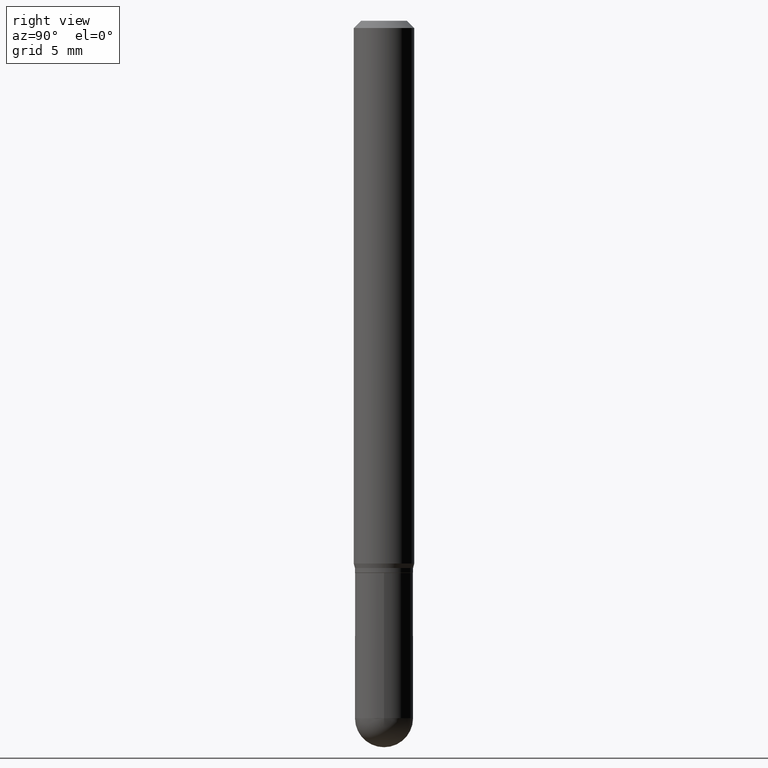
[diagram: clean part render]
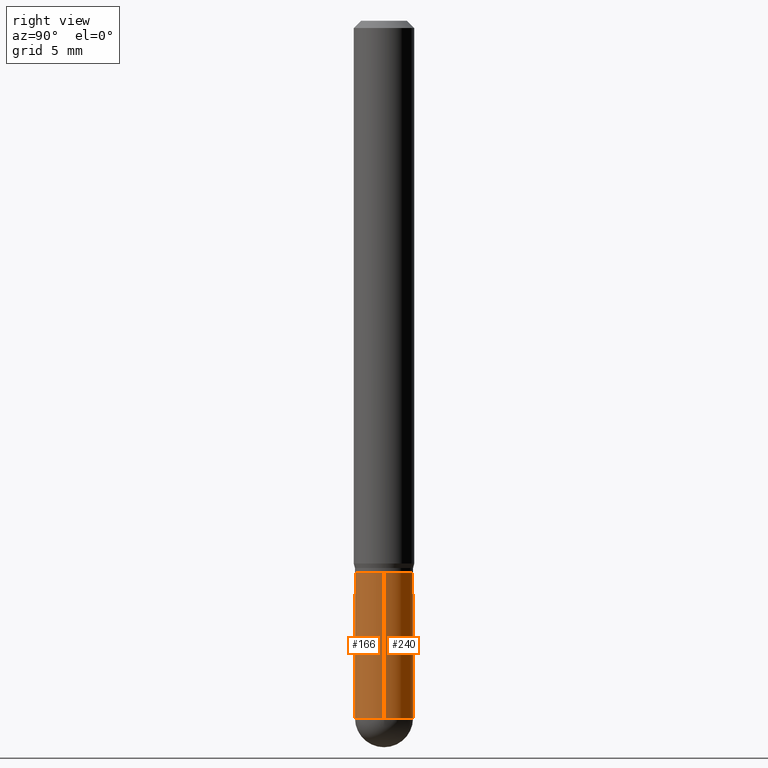
[diagram: same view with one multi-face feature highlighted, each face labeled with its STEP entity id]
A machine part, right view. The highlighted faces form ONE feature: a constant-radius fillet chain: 2 tangent blend faces with common blend radius 1.524 mm. The faces share edges in the B-rep.
Their STEP definitions:
[1] entity #166 (Cylinder):
#24 = DIRECTION ( 'NONE',  ( 1.000000000000000000, -6.982962677686268288E-15, 0.000000000000000000 ) ) ;
#32 = VERTEX_POINT ( 'NONE', #335 ) ;
#37 = AXIS2_PLACEMENT_3D ( 'NONE', #469, #142, #268 ) ;
#38 = ORIENTED_EDGE ( 'NONE', *, *, #120, .F. ) ;
#39 = CARTESIAN_POINT ( 'NONE',  ( 0.05999999999999999778, -4.399266486942362543E-15, -1.140000000000000124 ) ) ;
#46 = EDGE_CURVE ( 'NONE', #164, #32, #371, .T. ) ;
#61 = CARTESIAN_POINT ( 'NONE',  ( 0.06000000000000001166, -4.922988687768835701E-15, -1.440000000000000169 ) ) ;
#68 = DIRECTION ( 'NONE',  ( 1.000000000000000000, -6.982962677686266711E-15, 0.000000000000000000 ) ) ;
#75 = CIRCLE ( 'NONE', #475, 0.06000000000000001166 ) ;
#82 = VERTEX_POINT ( 'NONE', #61 ) ;
#96 = DIRECTION ( 'NONE',  ( -2.445468806185136877E-29, 3.491481338843145188E-15, 1.000000000000000000 ) ) ;
#117 = CARTESIAN_POINT ( 'NONE',  ( -4.263256414560247449E-16, -0.06000000000000501460, -1.439999999999999947 ) ) ;
#120 = EDGE_CURVE ( 'NONE', #32, #247, #156, .T. ) ;
#122 = CARTESIAN_POINT ( 'NONE',  ( 3.521475080906597305E-29, -5.027733127934130649E-15, -1.440000000000000169 ) ) ;
#130 = CARTESIAN_POINT ( 'NONE',  ( 0.06000000000000001166, -4.189777606611760914E-16, 2.925706065477562106E-30 ) ) ;
#135 = CYLINDRICAL_SURFACE ( 'NONE', #37, 0.06000000000000001166 ) ;
#142 = DIRECTION ( 'NONE',  ( -2.445468806185136597E-29, 3.491481338843145583E-15, 1.000000000000000000 ) ) ;
#148 = AXIS2_PLACEMENT_3D ( 'NONE', #481, #357, #198 ) ;
#150 = CARTESIAN_POINT ( 'NONE',  ( 2.787834439051055989E-29, -3.980288726281186698E-15, -1.140000000000000124 ) ) ;
#156 = CIRCLE ( 'NONE', #296, 0.05999999999999999778 ) ;
#164 = VERTEX_POINT ( 'NONE', #263 ) ;
#166 = ADVANCED_FACE ( 'NONE', ( #503 ), #135, .T. ) ;
#171 = DIRECTION ( 'NONE',  ( -2.445468806185136877E-29, 3.491481338843145188E-15, 1.000000000000000000 ) ) ;
#175 = LINE ( 'NONE', #130, #341 ) ;
#198 = DIRECTION ( 'NONE',  ( 1.000000000000000000, -6.982962677686266711E-15, 0.000000000000000000 ) ) ;
#203 = ORIENTED_EDGE ( 'NONE', *, *, #258, .T. ) ;
#223 = VECTOR ( 'NONE', #171, 39.37007874015748143 ) ;
#232 = EDGE_LOOP ( 'NONE', ( #368, #203, #479, #374, #38 ) ) ;
#247 = VERTEX_POINT ( 'NONE', #39 ) ;
#258 = EDGE_CURVE ( 'NONE', #164, #320, #75, .T. ) ;
#263 = CARTESIAN_POINT ( 'NONE',  ( -0.06000000000000001166, -4.077685285651599366E-15, -1.440000000000000169 ) ) ;
#268 = DIRECTION ( 'NONE',  ( 1.000000000000000000, -6.982962677686266711E-15, 4.876176775795935793E-29 ) ) ;
#296 = AXIS2_PLACEMENT_3D ( 'NONE', #150, #309, #24 ) ;
#309 = DIRECTION ( 'NONE',  ( -2.445468806185136597E-29, 3.491481338843145583E-15, 1.000000000000000000 ) ) ;
#311 = DIRECTION ( 'NONE',  ( -2.445468806185136597E-29, 3.491481338843145583E-15, 1.000000000000000000 ) ) ;
#320 = VERTEX_POINT ( 'NONE', #117 ) ;
#335 = CARTESIAN_POINT ( 'NONE',  ( -0.05999999999999999778, -4.077685285651597789E-15, -1.140000000000000124 ) ) ;
#341 = VECTOR ( 'NONE', #96, 39.37007874015748143 ) ;
#357 = DIRECTION ( 'NONE',  ( -2.445468806185136597E-29, 3.491481338843145583E-15, 1.000000000000000000 ) ) ;
#368 = ORIENTED_EDGE ( 'NONE', *, *, #46, .F. ) ;
#369 = CARTESIAN_POINT ( 'NONE',  ( -0.06000000000000001166, 4.263256414560601944E-16, -2.951361054152943763E-30 ) ) ;
#371 = LINE ( 'NONE', #369, #223 ) ;
#374 = ORIENTED_EDGE ( 'NONE', *, *, #451, .T. ) ;
#375 = EDGE_CURVE ( 'NONE', #320, #82, #497, .T. ) ;
#451 = EDGE_CURVE ( 'NONE', #82, #247, #175, .T. ) ;
#469 = CARTESIAN_POINT ( 'NONE',  ( 0.000000000000000000, 0.000000000000000000, 0.000000000000000000 ) ) ;
#475 = AXIS2_PLACEMENT_3D ( 'NONE', #122, #311, #68 ) ;
#479 = ORIENTED_EDGE ( 'NONE', *, *, #375, .T. ) ;
#481 = CARTESIAN_POINT ( 'NONE',  ( 3.521475080906597305E-29, -5.027733127934130649E-15, -1.440000000000000169 ) ) ;
#497 = CIRCLE ( 'NONE', #148, 0.06000000000000001166 ) ;
#503 = FACE_OUTER_BOUND ( 'NONE', #232, .T. ) ;
[2] entity #240 (Cylinder):
#9 = EDGE_CURVE ( 'NONE', #66, #164, #314, .T. ) ;
#20 = DIRECTION ( 'NONE',  ( 1.000000000000000000, -6.982962677686266711E-15, 0.000000000000000000 ) ) ;
#26 = FACE_OUTER_BOUND ( 'NONE', #409, .T. ) ;
#30 = DIRECTION ( 'NONE',  ( -2.445468806185136597E-29, 3.491481338843145583E-15, 1.000000000000000000 ) ) ;
#32 = VERTEX_POINT ( 'NONE', #335 ) ;
#39 = CARTESIAN_POINT ( 'NONE',  ( 0.05999999999999999778, -4.399266486942362543E-15, -1.140000000000000124 ) ) ;
#46 = EDGE_CURVE ( 'NONE', #164, #32, #371, .T. ) ;
#61 = CARTESIAN_POINT ( 'NONE',  ( 0.06000000000000001166, -4.922988687768835701E-15, -1.440000000000000169 ) ) ;
#66 = VERTEX_POINT ( 'NONE', #172 ) ;
#82 = VERTEX_POINT ( 'NONE', #61 ) ;
#84 = ORIENTED_EDGE ( 'NONE', *, *, #210, .T. ) ;
#88 = DIRECTION ( 'NONE',  ( 1.000000000000000000, -6.982962677686266711E-15, 0.000000000000000000 ) ) ;
#90 = EDGE_CURVE ( 'NONE', #247, #32, #214, .T. ) ;
#92 = CARTESIAN_POINT ( 'NONE',  ( 3.521475080906597305E-29, -5.027733127934130649E-15, -1.440000000000000169 ) ) ;
#96 = DIRECTION ( 'NONE',  ( -2.445468806185136877E-29, 3.491481338843145188E-15, 1.000000000000000000 ) ) ;
#121 = ORIENTED_EDGE ( 'NONE', *, *, #46, .T. ) ;
#130 = CARTESIAN_POINT ( 'NONE',  ( 0.06000000000000001166, -4.189777606611760914E-16, 2.925706065477562106E-30 ) ) ;
#161 = ORIENTED_EDGE ( 'NONE', *, *, #9, .T. ) ;
#164 = VERTEX_POINT ( 'NONE', #263 ) ;
#171 = DIRECTION ( 'NONE',  ( -2.445468806185136877E-29, 3.491481338843145188E-15, 1.000000000000000000 ) ) ;
#172 = CARTESIAN_POINT ( 'NONE',  ( 4.189777606612110478E-16, 0.05999999999999495320, -1.440000000000000391 ) ) ;
#175 = LINE ( 'NONE', #130, #341 ) ;
#183 = DIRECTION ( 'NONE',  ( 1.000000000000000000, -6.982962677686268288E-15, 0.000000000000000000 ) ) ;
#186 = CYLINDRICAL_SURFACE ( 'NONE', #360, 0.06000000000000001166 ) ;
#210 = EDGE_CURVE ( 'NONE', #82, #66, #420, .T. ) ;
#214 = CIRCLE ( 'NONE', #429, 0.05999999999999999778 ) ;
#217 = CARTESIAN_POINT ( 'NONE',  ( 3.521475080906597305E-29, -5.027733127934130649E-15, -1.440000000000000169 ) ) ;
#220 = CARTESIAN_POINT ( 'NONE',  ( 2.787834439051055989E-29, -3.980288726281186698E-15, -1.140000000000000124 ) ) ;
#223 = VECTOR ( 'NONE', #171, 39.37007874015748143 ) ;
#240 = ADVANCED_FACE ( 'NONE', ( #26 ), #186, .T. ) ;
#241 = AXIS2_PLACEMENT_3D ( 'NONE', #217, #487, #88 ) ;
#247 = VERTEX_POINT ( 'NONE', #39 ) ;
#255 = DIRECTION ( 'NONE',  ( -2.445468806185136597E-29, 3.491481338843145583E-15, 1.000000000000000000 ) ) ;
#261 = AXIS2_PLACEMENT_3D ( 'NONE', #92, #255, #20 ) ;
#263 = CARTESIAN_POINT ( 'NONE',  ( -0.06000000000000001166, -4.077685285651599366E-15, -1.440000000000000169 ) ) ;
#284 = ORIENTED_EDGE ( 'NONE', *, *, #451, .F. ) ;
#314 = CIRCLE ( 'NONE', #241, 0.06000000000000001166 ) ;
#329 = ORIENTED_EDGE ( 'NONE', *, *, #90, .F. ) ;
#335 = CARTESIAN_POINT ( 'NONE',  ( -0.05999999999999999778, -4.077685285651597789E-15, -1.140000000000000124 ) ) ;
#341 = VECTOR ( 'NONE', #96, 39.37007874015748143 ) ;
#360 = AXIS2_PLACEMENT_3D ( 'NONE', #506, #422, #483 ) ;
#369 = CARTESIAN_POINT ( 'NONE',  ( -0.06000000000000001166, 4.263256414560601944E-16, -2.951361054152943763E-30 ) ) ;
#371 = LINE ( 'NONE', #369, #223 ) ;
#409 = EDGE_LOOP ( 'NONE', ( #161, #121, #329, #284, #84 ) ) ;
#420 = CIRCLE ( 'NONE', #261, 0.06000000000000001166 ) ;
#422 = DIRECTION ( 'NONE',  ( -2.445468806185136597E-29, 3.491481338843145583E-15, 1.000000000000000000 ) ) ;
#429 = AXIS2_PLACEMENT_3D ( 'NONE', #220, #30, #183 ) ;
#451 = EDGE_CURVE ( 'NONE', #82, #247, #175, .T. ) ;
#483 = DIRECTION ( 'NONE',  ( 1.000000000000000000, -6.982962677686266711E-15, 4.876176775795935793E-29 ) ) ;
#487 = DIRECTION ( 'NONE',  ( -2.445468806185136597E-29, 3.491481338843145583E-15, 1.000000000000000000 ) ) ;
#506 = CARTESIAN_POINT ( 'NONE',  ( 0.000000000000000000, 0.000000000000000000, 0.000000000000000000 ) ) ;